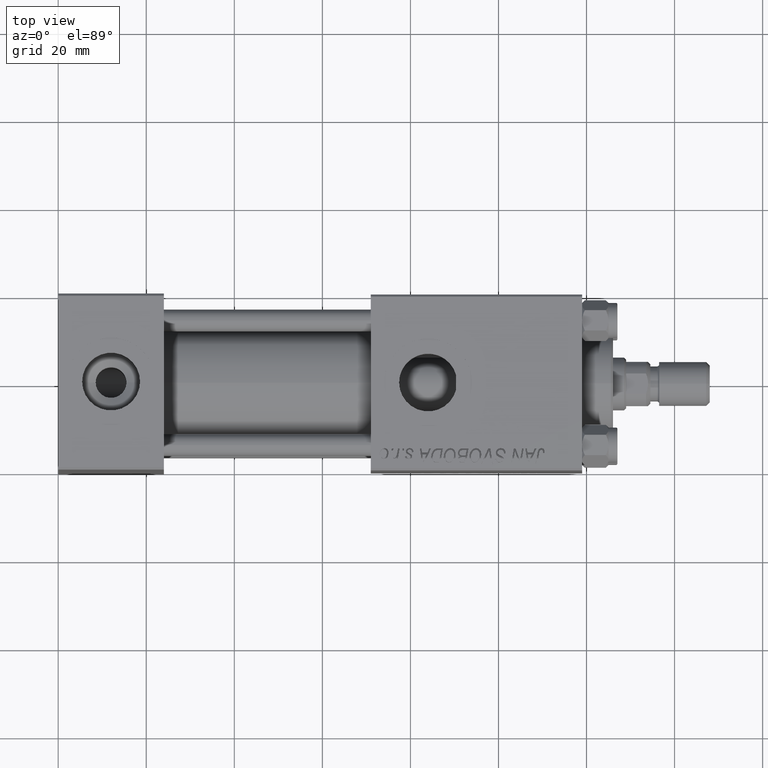
[diagram: clean part render]
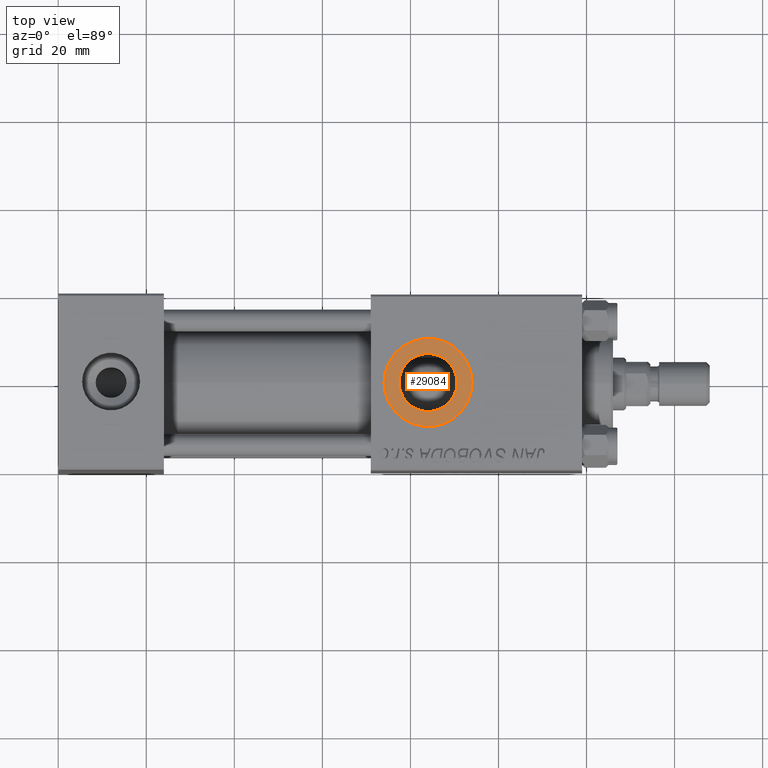
[diagram: same view with one face highlighted and labeled with its STEP entity id]
A machine part, top view. The second image highlights one B-rep face of the part: STEP entity #29084.
In plain terms, the highlighted planar face has unit normal (0, 0, 1).
Its self-contained STEP definition (entity closure, byte-faithful):
#293 = EDGE_CURVE ( 'NONE', #37225, #2386, #29163, .T. ) ;
#1543 = ORIENTED_EDGE ( 'NONE', *, *, #28661, .T. ) ;
#2386 = VERTEX_POINT ( 'NONE', #29814 ) ;
#3046 = EDGE_LOOP ( 'NONE', ( #44223, #1543 ) ) ;
#3587 = VERTEX_POINT ( 'NONE', #18311 ) ;
#5357 = EDGE_CURVE ( 'NONE', #24431, #3587, #7382, .T. ) ;
#7298 = DIRECTION ( 'NONE',  ( 1.000000000000000000, 0.000000000000000000, -0.000000000000000000 ) ) ;
#7382 = CIRCLE ( 'NONE', #46441, 10.00000000000154898 ) ;
#8241 = ORIENTED_EDGE ( 'NONE', *, *, #26209, .F. ) ;
#10854 = FACE_BOUND ( 'NONE', #41652, .T. ) ;
#11118 = DIRECTION ( 'NONE',  ( 0.000000000000000000, 0.000000000000000000, 1.000000000000000000 ) ) ;
#11442 = CIRCLE ( 'NONE', #17928, 10.00000000000154898 ) ;
#14101 = DIRECTION ( 'NONE',  ( 1.000000000000000000, 0.000000000000000000, 0.000000000000000000 ) ) ;
#14744 = AXIS2_PLACEMENT_3D ( 'NONE', #18241, #11118, #7298 ) ;
#17928 = AXIS2_PLACEMENT_3D ( 'NONE', #48400, #21381, #33333 ) ;
#18241 = CARTESIAN_POINT ( 'NONE',  ( 84.00000000000000000, -1.734723475976806897E-15, 19.80000000000000071 ) ) ;
#18311 = CARTESIAN_POINT ( 'NONE',  ( 73.99999999999845102, -5.100766768292640183E-16, 19.80000000000000071 ) ) ;
#21381 = DIRECTION ( 'NONE',  ( 0.000000000000000000, 0.000000000000000000, 1.000000000000000000 ) ) ;
#21505 = CARTESIAN_POINT ( 'NONE',  ( 84.00000000000000000, -1.734723475976806897E-15, 19.80000000000000071 ) ) ;
#22318 = FACE_OUTER_BOUND ( 'NONE', #3046, .T. ) ;
#22669 = CARTESIAN_POINT ( 'NONE',  ( 84.00000000000000000, -1.734723475976806897E-15, 19.80000000000000071 ) ) ;
#24431 = VERTEX_POINT ( 'NONE', #33070 ) ;
#25222 = CARTESIAN_POINT ( 'NONE',  ( 84.00000000000000000, -1.734723475976806897E-15, 19.80000000000000071 ) ) ;
#26209 = EDGE_CURVE ( 'NONE', #2386, #37225, #26797, .T. ) ;
#26797 = CIRCLE ( 'NONE', #33297, 6.580000000001542837 ) ;
#28661 = EDGE_CURVE ( 'NONE', #3587, #24431, #11442, .T. ) ;
#29084 = ADVANCED_FACE ( 'NONE', ( #10854, #22318 ), #42213, .T. ) ;
#29163 = CIRCLE ( 'NONE', #43045, 6.580000000001542837 ) ;
#29814 = CARTESIAN_POINT ( 'NONE',  ( 90.58000000000154728, -1.734723475976806897E-15, 19.80000000000000071 ) ) ;
#31315 = DIRECTION ( 'NONE',  ( 1.000000000000000000, 0.000000000000000000, 0.000000000000000000 ) ) ;
#33070 = CARTESIAN_POINT ( 'NONE',  ( 94.00000000000154898, -1.734723475976806897E-15, 19.80000000000000071 ) ) ;
#33297 = AXIS2_PLACEMENT_3D ( 'NONE', #21505, #37038, #14101 ) ;
#33333 = DIRECTION ( 'NONE',  ( 1.000000000000000000, 0.000000000000000000, 0.000000000000000000 ) ) ;
#36196 = DIRECTION ( 'NONE',  ( 1.000000000000000000, 0.000000000000000000, 0.000000000000000000 ) ) ;
#36946 = DIRECTION ( 'NONE',  ( 0.000000000000000000, 0.000000000000000000, 1.000000000000000000 ) ) ;
#37038 = DIRECTION ( 'NONE',  ( 0.000000000000000000, 0.000000000000000000, 1.000000000000000000 ) ) ;
#37225 = VERTEX_POINT ( 'NONE', #42340 ) ;
#41652 = EDGE_LOOP ( 'NONE', ( #8241, #42941 ) ) ;
#42213 = PLANE ( 'NONE',  #14744 ) ;
#42340 = CARTESIAN_POINT ( 'NONE',  ( 77.41999999999846693, -9.289058821376599092E-16, 19.80000000000000071 ) ) ;
#42941 = ORIENTED_EDGE ( 'NONE', *, *, #293, .F. ) ;
#43045 = AXIS2_PLACEMENT_3D ( 'NONE', #22669, #49957, #31315 ) ;
#44223 = ORIENTED_EDGE ( 'NONE', *, *, #5357, .T. ) ;
#46441 = AXIS2_PLACEMENT_3D ( 'NONE', #25222, #36946, #36196 ) ;
#48400 = CARTESIAN_POINT ( 'NONE',  ( 84.00000000000000000, -1.734723475976806897E-15, 19.80000000000000071 ) ) ;
#49957 = DIRECTION ( 'NONE',  ( 0.000000000000000000, 0.000000000000000000, 1.000000000000000000 ) ) ;